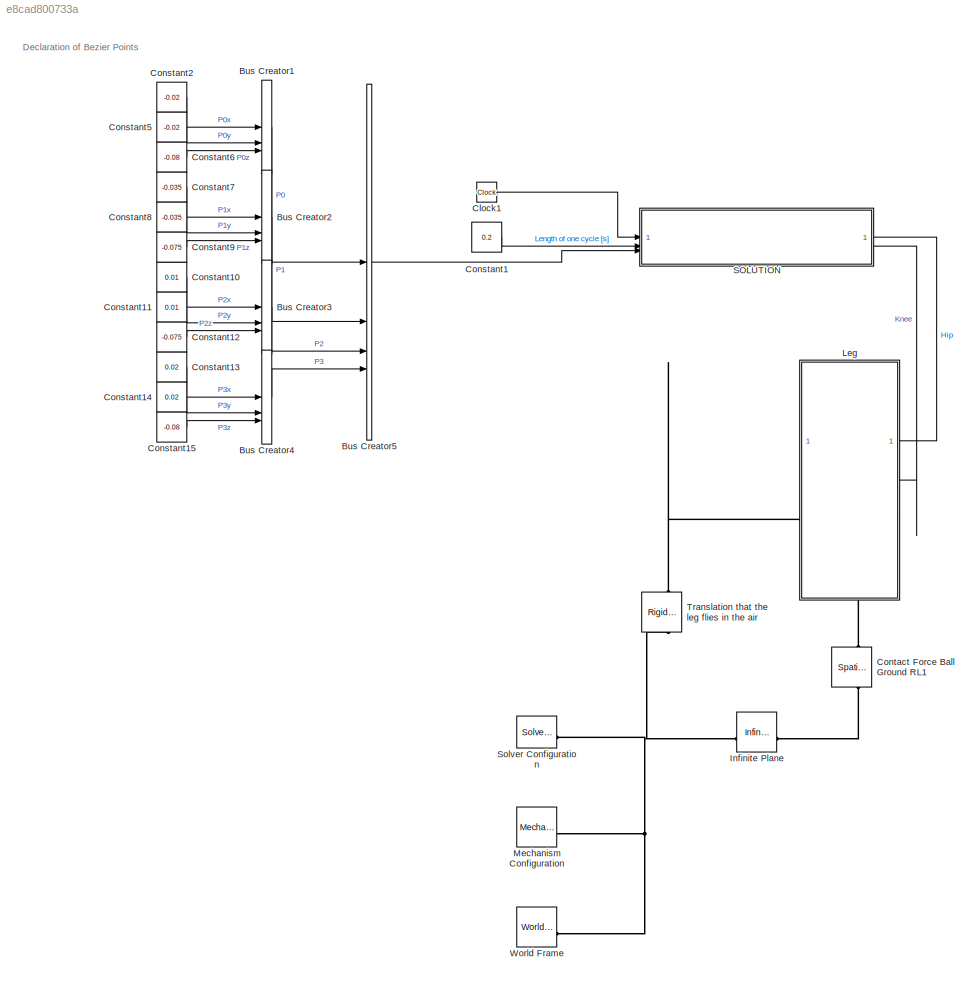
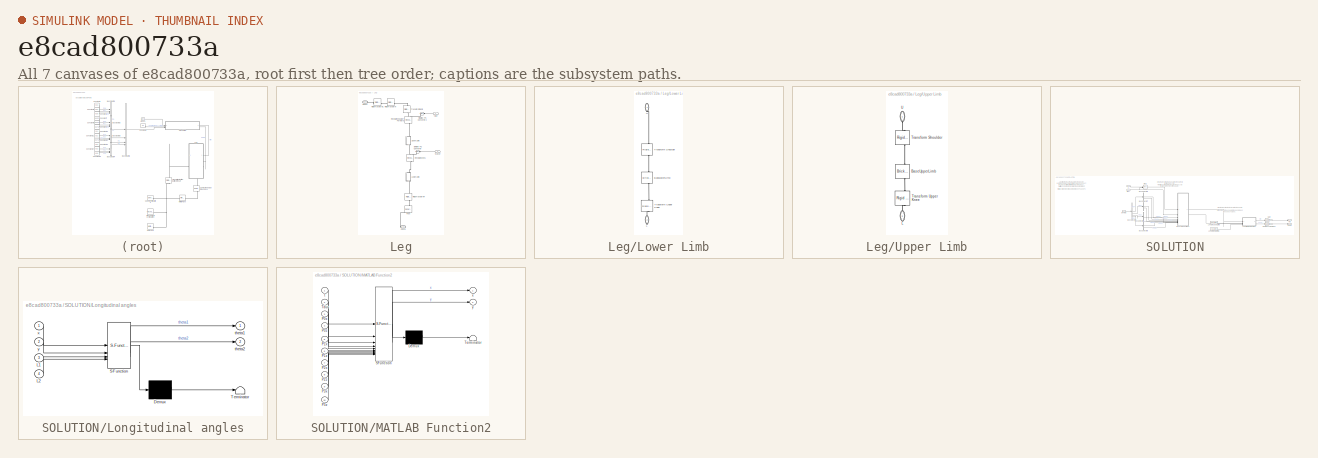
[diagram: thumbnail index - all 7 canvases of the model, root first then tree order]
MODEL slx_e8cad800733a
KIND model
CONFIG AbsTol = 1e-3
CONFIG EnableMultiTasking = on
CONFIG FixedStep = auto
CONFIG MaxStep = auto
CONFIG MinStep = auto
CONFIG RelTol = 1e-3
CONFIG SampleTimeConstraint = Unconstrained
CONFIG SolverName = ode23t
CONFIG StartTime = 0.0
CONFIG StopTime = 5
WORKSPACE source: mxarray member
WORKSPACE A = 0.4
WORKSPACE Critical_Velocity = 0.01
WORKSPACE Damping_Factor = 1000
WORKSPACE Dynamic_Friction = 0.5
WORKSPACE Heigth_brick: Simulink.Parameter (value not decoded)
WORKSPACE Heigth_ramp: Simulink.Parameter (value not decoded)
WORKSPACE Length_brick: Simulink.Parameter (value not decoded)
WORKSPACE Length_ramp: Simulink.Parameter (value not decoded)
WORKSPACE Length_torso: Simulink.Parameter (value not decoded)
WORKSPACE Lower_limbs: Simulink.Parameter (value not decoded)
WORKSPACE Static_Friction = 0.7
WORKSPACE Stiffnesscoefficient = 10000
WORKSPACE Transition_Region_Width = 0.02
WORKSPACE Upper_limbs: Simulink.Parameter (value not decoded)
WORKSPACE Width_brick: Simulink.Parameter (value not decoded)
WORKSPACE Width_ramp: Simulink.Parameter (value not decoded)
WORKSPACE Width_torso: Simulink.Parameter (value not decoded)
WORKSPACE f = 1.5
WORKSPACE max_Joint_change = 100
WORKSPACE r_foot: Simulink.Parameter (value not decoded)
WORKSPACE sampleTime: Simulink.Parameter (value not decoded)
WORKSPACE t_leg: Simulink.Parameter (value not decoded)
WORKSPACE theta: Simulink.Parameter (value not decoded)
WORKSPACE transferFunVal: Simulink.Parameter (value not decoded)
BLOCK [BusCreator] Bus Creator1
  DisplayOption = bar
  InheritFromInputs = on
  Inputs = 3
BLOCK [BusCreator] Bus Creator2
  DisplayOption = bar
  InheritFromInputs = on
  Inputs = 3
BLOCK [BusCreator] Bus Creator3
  DisplayOption = bar
  InheritFromInputs = on
  Inputs = 3
BLOCK [BusCreator] Bus Creator4
  DisplayOption = bar
  InheritFromInputs = on
  Inputs = 3
BLOCK [BusCreator] Bus Creator5
  DisplayOption = bar
  InheritFromInputs = on
  Inputs = 4
BLOCK [Clock] Clock1
BLOCK [Constant] Constant1
  Value = 0.2
BLOCK [Constant] Constant10
  Value = 0.01
BLOCK [Constant] Constant11
  Value = 0.01
BLOCK [Constant] Constant12
  Value = -0.075
BLOCK [Constant] Constant13
  Value = 0.02
BLOCK [Constant] Constant14
  Value = 0.02
BLOCK [Constant] Constant15
  Value = -0.08
BLOCK [Constant] Constant2
  Value = -0.02
BLOCK [Constant] Constant5
  Value = -0.02
BLOCK [Constant] Constant6
  Value = -0.08
BLOCK [Constant] Constant7
  Value = -0.035
BLOCK [Constant] Constant8
  Value = -0.035
BLOCK [Constant] Constant9
  Value = -0.075
BLOCK [Reference] Contact Force Ball Ground RL1  REF=sm_lib/Forces and
Torques/Spatial
Contact Force
  NameLocation = left
  SourceBlock = sm_lib/Forces and\nTorques/Spatial\nContact Force
  SourceType = Spatial\nContact Force
BLOCK [Reference] Infinite Plane  REF=sm_lib/Curves and Surfaces/Infinite Plane
  SourceBlock = sm_lib/Curves and Surfaces/Infinite Plane
  SourceType = Infinite Plane
BLOCK [SubSystem] Leg
  PortSchema = {"entries":[{"content":{"sides":[{"content":{},"type":"ConnectorPlacement.EquallySpacedRectSide","uuid":"4058ee2b-9772-4aa9-ad2c-dc188ae6aecd"},{"content":{"connectorIds":["In1","In2"],"side":"RIGHT"},"type":"ConnectorPlacement.EquallySpacedRectSide","uuid":"c8f5ac60-63ea-4dfe-ad35-3ef8c1bdb1d6"},{"content":{"connectorIds":["LConn1"],"side":"TOP"},"type":"ConnectorPlacement.EquallySpacedRectSide",...<+383ch>
BLOCK [Inport] Leg/<Hip>
  NameLocation = top
BLOCK [Inport] Leg/<Knee>
  NameLocation = top
  Port = 2
BLOCK [PMIOPort] Leg/Conn1
  Side = Left
BLOCK [PMIOPort] Leg/Conn2
  Port = 2
  Side = Right
BLOCK [Reference] Leg/Foot  REF=sm_lib/Body Elements/Spherical Solid
  NameLocation = right
  SourceBlock = sm_lib/Body Elements/Spherical Solid
  SourceType = Spherical Solid
BLOCK [SubSystem] Leg/Lower Limb
  NameLocation = left
BLOCK [Reference] Leg/Lower Limb/BaseLowerLimb  REF=sm_lib/Body Elements/Brick Solid
  NameLocation = left
  SourceBlock = sm_lib/Body Elements/Brick Solid
  SourceType = Brick Solid
BLOCK [PMIOPort] Leg/Lower Limb/L
  NameLocation = left
  Port = 2
  Side = Right
BLOCK [Reference] Leg/Lower Limb/Transform Shoulder  REF=sm_lib/Frames and
Transforms/Rigid
Transform
  NameLocation = left
  SourceBlock = sm_lib/Frames and\nTransforms/Rigid\nTransform
  SourceType = Rigid\nTransform
BLOCK [Reference] Leg/Lower Limb/Transform Upper Knee  REF=sm_lib/Frames and
Transforms/Rigid
Transform
  NameLocation = left
  SourceBlock = sm_lib/Frames and\nTransforms/Rigid\nTransform
  SourceType = Rigid\nTransform
BLOCK [PMIOPort] Leg/Lower Limb/U
  NameLocation = left
  Side = Left
BLOCK [Reference] Leg/Revolute Knee1  REF=sm_lib/Joints/Revolute Joint
  NameLocation = left
  SourceBlock = sm_lib/Joints/Revolute Joint
  SourceType = Revolute Joint
BLOCK [Reference] Leg/Revolute Shoulder Forward  REF=sm_lib/Joints/Revolute Joint
  NameLocation = left
  SourceBlock = sm_lib/Joints/Revolute Joint
  SourceType = Revolute Joint
BLOCK [Reference] Leg/Rigid Transform  REF=sm_lib/Frames and
Transforms/Rigid
Transform
  SourceBlock = sm_lib/Frames and\nTransforms/Rigid\nTransform
  SourceType = Rigid\nTransform
BLOCK [Reference] Leg/Rigid Transform1  REF=sm_lib/Frames and
Transforms/Rigid
Transform
  SourceBlock = sm_lib/Frames and\nTransforms/Rigid\nTransform
  SourceType = Rigid\nTransform
BLOCK [Reference] Leg/Rigid Transform4  REF=sm_lib/Frames and
Transforms/Rigid
Transform
  NameLocation = left
  SourceBlock = sm_lib/Frames and\nTransforms/Rigid\nTransform
  SourceType = Rigid\nTransform
BLOCK [Reference] Leg/Simulink-PS Converter  REF=nesl_utility/Simulink-PS
Converter
  NameLocation = top
  SourceBlock = nesl_utility/Simulink-PS\nConverter
  SourceType = Simulink-PS\nConverter
BLOCK [Reference] Leg/Simulink-PS Converter2  REF=nesl_utility/Simulink-PS
Converter
  NameLocation = top
  SourceBlock = nesl_utility/Simulink-PS\nConverter
  SourceType = Simulink-PS\nConverter
BLOCK [Reference] Leg/Transform Pivot1  REF=sm_lib/Frames and
Transforms/Rigid
Transform
  NameLocation = left
  SourceBlock = sm_lib/Frames and\nTransforms/Rigid\nTransform
  SourceType = Rigid\nTransform
BLOCK [SubSystem] Leg/Upper Limb
  NameLocation = left
BLOCK [Reference] Leg/Upper Limb/BaseUpperLimb  REF=sm_lib/Body Elements/Brick Solid
  NameLocation = left
  SourceBlock = sm_lib/Body Elements/Brick Solid
  SourceType = Brick Solid
BLOCK [PMIOPort] Leg/Upper Limb/L
  NameLocation = left
  Port = 2
  Side = Right
BLOCK [Reference] Leg/Upper Limb/Transform Shoulder  REF=sm_lib/Frames and
Transforms/Rigid
Transform
  NameLocation = left
  SourceBlock = sm_lib/Frames and\nTransforms/Rigid\nTransform
  SourceType = Rigid\nTransform
BLOCK [Reference] Leg/Upper Limb/Transform Upper Knee  REF=sm_lib/Frames and
Transforms/Rigid
Transform
  NameLocation = left
  SourceBlock = sm_lib/Frames and\nTransforms/Rigid\nTransform
  SourceType = Rigid\nTransform
BLOCK [PMIOPort] Leg/Upper Limb/U
  NameLocation = left
  Side = Left
BLOCK [Reference] Mechanism Configuration  REF=sm_lib/Utilities/Mechanism
Configuration
  SourceBlock = sm_lib/Utilities/Mechanism\nConfiguration
  SourceType = Mechanism\nConfiguration
BLOCK [SubSystem] SOLUTION
BLOCK [Inport] SOLUTION/BPoints
  Port = 3
BLOCK [BusSelector] SOLUTION/Bus Selector5
  OutputSignals = P0,P1,P2,P3
BLOCK [BusSelector] SOLUTION/Bus Selector6
  OutputSignals = P0x,P0z
BLOCK [BusSelector] SOLUTION/Bus Selector7
  OutputSignals = P1x,P1z
BLOCK [BusSelector] SOLUTION/Bus Selector8
  OutputSignals = P2x,P2z
BLOCK [BusSelector] SOLUTION/Bus Selector9
  OutputSignals = P3x,P3z
BLOCK [Gain] SOLUTION/Gain
  Gain = 180/pi
BLOCK [Constant] SOLUTION/Length lower Limb
  Value = Lower_limbs
BLOCK [Constant] SOLUTION/Length upper Limb
  Value = Upper_limbs
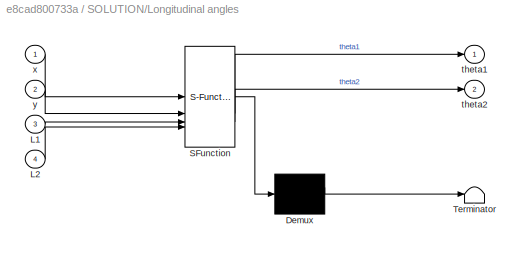
BLOCK [SubSystem] SOLUTION/Longitudinal angles
  ErrorFcn = Stateflow.Translate.translate
  PermitHierarchicalResolution = ExplicitOnly
  SFBlockType = MATLAB Function
  TreatAsAtomicUnit = on
BLOCK [Demux] SOLUTION/Longitudinal angles/ Demux 
  Outputs = 1
BLOCK [S-Function] SOLUTION/Longitudinal angles/ SFunction 
  EnableBusSupport = on
  FunctionName = sf_sfun
  PortCounts = [4 3]
  SFcnIsStateOwnerBlock = off
  SFunctionDeploymentMode = off
  Tag = Stateflow S-Function 81
BLOCK [Terminator] SOLUTION/Longitudinal angles/ Terminator 
BLOCK [Inport] SOLUTION/Longitudinal angles/L1
  Port = 3
BLOCK [Inport] SOLUTION/Longitudinal angles/L2
  Port = 4
BLOCK [Outport] SOLUTION/Longitudinal angles/theta1
BLOCK [Outport] SOLUTION/Longitudinal angles/theta2
  Port = 2
BLOCK [Inport] SOLUTION/Longitudinal angles/x
BLOCK [Inport] SOLUTION/Longitudinal angles/y
  Port = 2
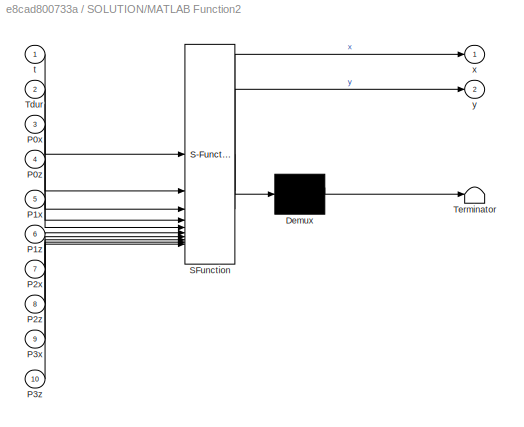
BLOCK [SubSystem] SOLUTION/MATLAB Function2
  ErrorFcn = Stateflow.Translate.translate
  PermitHierarchicalResolution = ExplicitOnly
  SFBlockType = MATLAB Function
  TreatAsAtomicUnit = on
BLOCK [Demux] SOLUTION/MATLAB Function2/ Demux 
  Outputs = 1
BLOCK [S-Function] SOLUTION/MATLAB Function2/ SFunction 
  EnableBusSupport = on
  FunctionName = sf_sfun
  PortCounts = [10 3]
  SFcnIsStateOwnerBlock = off
  SFunctionDeploymentMode = off
  Tag = Stateflow S-Function 94
BLOCK [Terminator] SOLUTION/MATLAB Function2/ Terminator 
BLOCK [Inport] SOLUTION/MATLAB Function2/P0x
  Port = 3
BLOCK [Inport] SOLUTION/MATLAB Function2/P0z
  Port = 4
BLOCK [Inport] SOLUTION/MATLAB Function2/P1x
  Port = 5
BLOCK [Inport] SOLUTION/MATLAB Function2/P1z
  Port = 6
BLOCK [Inport] SOLUTION/MATLAB Function2/P2x
  Port = 7
BLOCK [Inport] SOLUTION/MATLAB Function2/P2z
  Port = 8
BLOCK [Inport] SOLUTION/MATLAB Function2/P3x
  Port = 9
BLOCK [Inport] SOLUTION/MATLAB Function2/P3z
  Port = 10
BLOCK [Inport] SOLUTION/MATLAB Function2/Tdur
  Port = 2
BLOCK [Inport] SOLUTION/MATLAB Function2/t
BLOCK [Outport] SOLUTION/MATLAB Function2/x
BLOCK [Outport] SOLUTION/MATLAB Function2/y
  Port = 2
BLOCK [Math] SOLUTION/Mod
  Operator = mod
BLOCK [Gain] SOLUTION/Radians -> Degrees
  Gain = -180/pi
BLOCK [Outport] SOLUTION/hip
BLOCK [Outport] SOLUTION/knee
  Port = 2
BLOCK [Inport] SOLUTION/t
BLOCK [Inport] SOLUTION/tdur
  Port = 2
BLOCK [Reference] Solver Configuration  REF=nesl_utility/Solver
Configuration
  SourceBlock = nesl_utility/Solver\nConfiguration
  SourceType = Solver\nConfiguration
BLOCK [Reference] Translation that the leg flies in the air  REF=sm_lib/Frames and
Transforms/Rigid
Transform
  SourceBlock = sm_lib/Frames and\nTransforms/Rigid\nTransform
  SourceType = Rigid\nTransform
BLOCK [Reference] World Frame  REF=sm_lib/Frames and
Transforms/World Frame
  SourceBlock = sm_lib/Frames and\nTransforms/World Frame
  SourceType = World Frame
ANNOTATION (root): Declaration of Bezier Points
ANNOTATION SOLUTION: 1) Split up the 'Bus' that contains the Bezier points (use a 'Bus Selector' block) and connect the signals with the first Matlab function block. 2) Write a code that calculates the path of a foot: - initial position is the mid point between P0 and P3 - time-ratio of support phase to swing phase is 3:1 - foot starts with support phase, swings to the front, and goes back to initial position again - ...<+374ch>
ANNOTATION SOLUTION: Create a function that calculates the angle of the hip and the knee joint depending on the x and y values.
ANNOTATION SOLUTION: Create a function that calculates the path of a foot in one cycle. Time (t) goes from 0 to the length of one cycle (tdur) and is then reset to 0 again.
LINE Bus Creator1:1 -> Bus Creator5:1
LINE Bus Creator2:1 -> Bus Creator5:2
LINE Bus Creator3:1 -> Bus Creator5:3
LINE Bus Creator4:1 -> Bus Creator5:4
LINE Bus Creator5:1 -> SOLUTION:3
LINE Clock1:1 -> SOLUTION:1
LINE Constant10:1 -> Bus Creator3:1
LINE Constant11:1 -> Bus Creator3:2
LINE Constant12:1 -> Bus Creator3:3
LINE Constant13:1 -> Bus Creator4:1
LINE Constant14:1 -> Bus Creator4:2
LINE Constant15:1 -> Bus Creator4:3
LINE Constant1:1 -> SOLUTION:2
LINE Constant2:1 -> Bus Creator1:1
LINE Constant5:1 -> Bus Creator1:2
LINE Constant6:1 -> Bus Creator1:3
LINE Constant7:1 -> Bus Creator2:1
LINE Constant8:1 -> Bus Creator2:2
LINE Constant9:1 -> Bus Creator2:3
LINE Leg/<Hip>:1 -> Leg/Simulink-PS Converter2:1
LINE Leg/<Knee>:1 -> Leg/Simulink-PS Converter:1
LINE SOLUTION/BPoints:1 -> SOLUTION/Bus Selector5:1
LINE SOLUTION/Bus Selector5:1 -> SOLUTION/Bus Selector6:1
LINE SOLUTION/Bus Selector5:2 -> SOLUTION/Bus Selector7:1
LINE SOLUTION/Bus Selector5:3 -> SOLUTION/Bus Selector8:1
LINE SOLUTION/Bus Selector5:4 -> SOLUTION/Bus Selector9:1
LINE SOLUTION/Bus Selector6:1 -> SOLUTION/MATLAB Function2:3
LINE SOLUTION/Bus Selector6:2 -> SOLUTION/MATLAB Function2:4
LINE SOLUTION/Bus Selector7:1 -> SOLUTION/MATLAB Function2:5
LINE SOLUTION/Bus Selector7:2 -> SOLUTION/MATLAB Function2:6
LINE SOLUTION/Bus Selector8:1 -> SOLUTION/MATLAB Function2:7
LINE SOLUTION/Bus Selector8:2 -> SOLUTION/MATLAB Function2:8
LINE SOLUTION/Bus Selector9:1 -> SOLUTION/MATLAB Function2:9
LINE SOLUTION/Bus Selector9:2 -> SOLUTION/MATLAB Function2:10
LINE SOLUTION/Gain:1 -> SOLUTION/hip:1
LINE SOLUTION/Length lower Limb:1 -> SOLUTION/Longitudinal angles:4
LINE SOLUTION/Length upper Limb:1 -> SOLUTION/Longitudinal angles:3
LINE SOLUTION/Longitudinal angles:1 -> SOLUTION/Gain:1
LINE SOLUTION/Longitudinal angles:2 -> SOLUTION/Radians -> Degrees:1
LINE SOLUTION/MATLAB Function2:1 -> SOLUTION/Longitudinal angles:1
LINE SOLUTION/MATLAB Function2:2 -> SOLUTION/Longitudinal angles:2
LINE SOLUTION/Mod:1 -> SOLUTION/MATLAB Function2:1
LINE SOLUTION/Radians -> Degrees:1 -> SOLUTION/knee:1
LINE SOLUTION/t:1 -> SOLUTION/Mod:1
NET SOLUTION/tdur:1 -> SOLUTION/MATLAB Function2:2, SOLUTION/Mod:2
LINE SOLUTION:1 -> Leg:1
LINE SOLUTION:2 -> Leg:2
PLINE Contact Force Ball Ground RL1:LConn1 -- Leg:RConn1
PLINE Contact Force Ball Ground RL1:RConn1 -- Infinite Plane:RConn1
PNET net1: Infinite Plane:LConn1 -- Mechanism Configuration:RConn1 -- Solver Configuration:RConn1 -- Translation that the leg flies in the air:LConn1 -- World Frame:RConn1
PLINE Leg/Conn1:RConn1 -- Leg/Rigid Transform1:LConn1
PLINE Leg/Conn2:RConn1 -- Leg/Foot:LConn1
PLINE Leg/Foot:RConn1 -- Leg/Rigid Transform4:RConn1
PLINE Leg/Lower Limb/BaseLowerLimb:LConn1 -- Leg/Lower Limb/Transform Shoulder:LConn1
PLINE Leg/Lower Limb/BaseLowerLimb:RConn1 -- Leg/Lower Limb/Transform Upper Knee:LConn1
PLINE Leg/Lower Limb/L:RConn1 -- Leg/Lower Limb/Transform Upper Knee:RConn1
PLINE Leg/Lower Limb/Transform Shoulder:RConn1 -- Leg/Lower Limb/U:RConn1
PLINE Leg/Lower Limb:LConn1 -- Leg/Revolute Knee1:RConn1
PLINE Leg/Lower Limb:RConn1 -- Leg/Rigid Transform4:LConn1
PLINE Leg/Revolute Knee1:LConn1 -- Leg/Upper Limb:RConn1
PLINE Leg/Revolute Knee1:LConn2 -- Leg/Simulink-PS Converter:RConn1
PLINE Leg/Revolute Shoulder Forward:LConn1 -- Leg/Transform Pivot1:RConn1
PLINE Leg/Revolute Shoulder Forward:LConn2 -- Leg/Simulink-PS Converter2:RConn1
PLINE Leg/Revolute Shoulder Forward:RConn1 -- Leg/Upper Limb:LConn1
PLINE Leg/Rigid Transform1:RConn1 -- Leg/Rigid Transform:LConn1
PLINE Leg/Rigid Transform:RConn1 -- Leg/Transform Pivot1:LConn1
PLINE Leg/Upper Limb/BaseUpperLimb:LConn1 -- Leg/Upper Limb/Transform Shoulder:LConn1
PLINE Leg/Upper Limb/BaseUpperLimb:RConn1 -- Leg/Upper Limb/Transform Upper Knee:LConn1
PLINE Leg/Upper Limb/L:RConn1 -- Leg/Upper Limb/Transform Upper Knee:RConn1
PLINE Leg/Upper Limb/Transform Shoulder:RConn1 -- Leg/Upper Limb/U:RConn1
PLINE Leg:LConn1 -- Translation that the leg flies in the air:RConn1
note: NET lines group one-source signal fan-out (src -> all destinations, sorted); 1:1 wires keep LINE; PNET lines group multi-terminal physical nets as a canonical sorted terminal list (undirected conserving connections); 2-terminal nets keep the pairwise PLINE form
CHART SOLUTION/Longitudinal angles states=1 transitions=1
  STATE_LABEL 'eML_blk_kernel()'
  STATE_LABEL 'SCRIPT:\nfunction [theta1, theta2] = ang(x,y,L1,L2)\ntheta2 = acos((x.^2+y.^2-L1.^2-L2.^2) / (2*L1*L2));\nbeta = asin((L2*sin(theta2))./((x.^2+y.^2).^0.5));\ntheta1 = asin(x./((x.^2+y.^2).^0.5)) + beta;\nend'
CHART SOLUTION/MATLAB Function2 states=1 transitions=1
  STATE_LABEL 'eML_blk_kernel()'
  STATE_LABEL 'SCRIPT:\nfunction [x, y] = bez_plane_TrajV2(t,Tdur,P0x,P0z,P1x,P1z,P2x,P2z,P3x,P3z)\nt_swing = Tdur/4;\nt_support = Tdur*3/4;\n\nP0 = [P0x, P0z];\nP1 = [P1x, P1z];\nP2 = [P2x, P2z];\nP3 = [P3x, P3z];\nP_ini = (P0 + P3)/2;\n\nif Tdur == 0\n    x = -P_ini(1);\n    y = P_ini(2);\n\nelseif t<=t_support/2\n    x = -1*(P_ini(1)+(P0(1)-P3(1))/t_support*(t));\n    y = P_ini(2);\n\nelseif t<=t_support/2+t_swing\n    t_ef = (t...<+328ch>'
CHART  states=0 transitions=0
CHART  states=0 transitions=0
